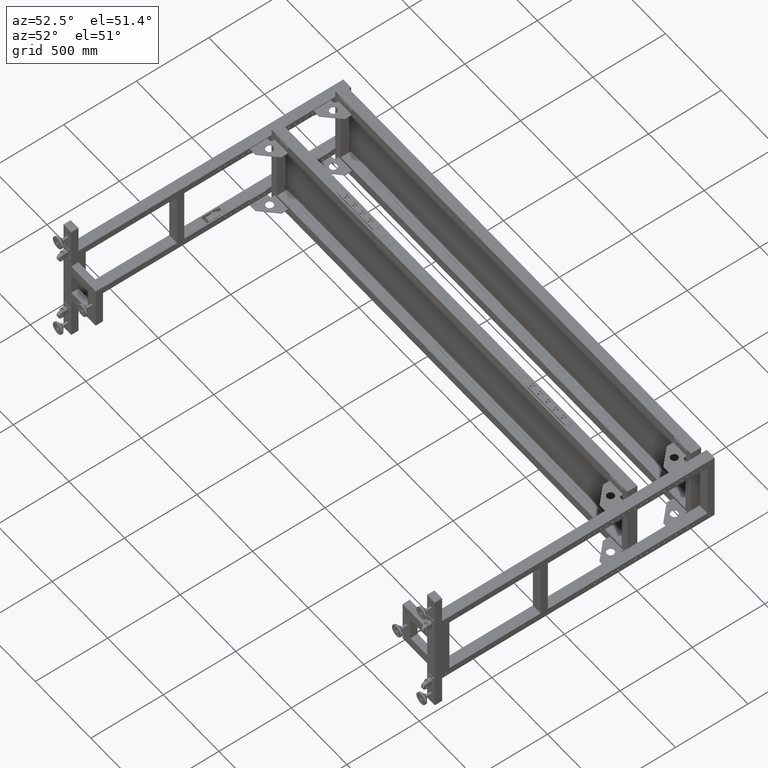
[diagram: clean part render]
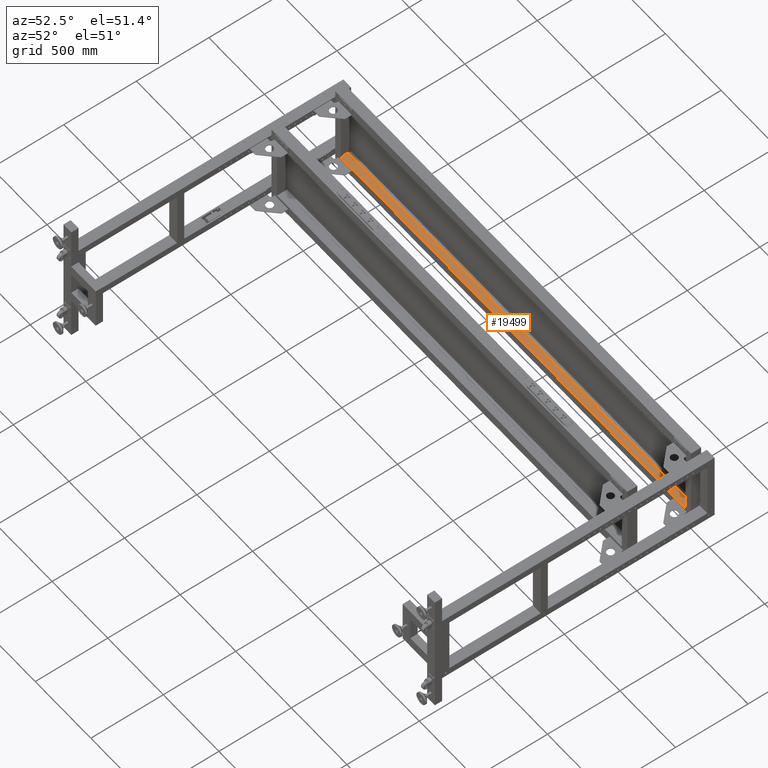
[diagram: same view with one face highlighted and labeled with its STEP entity id]
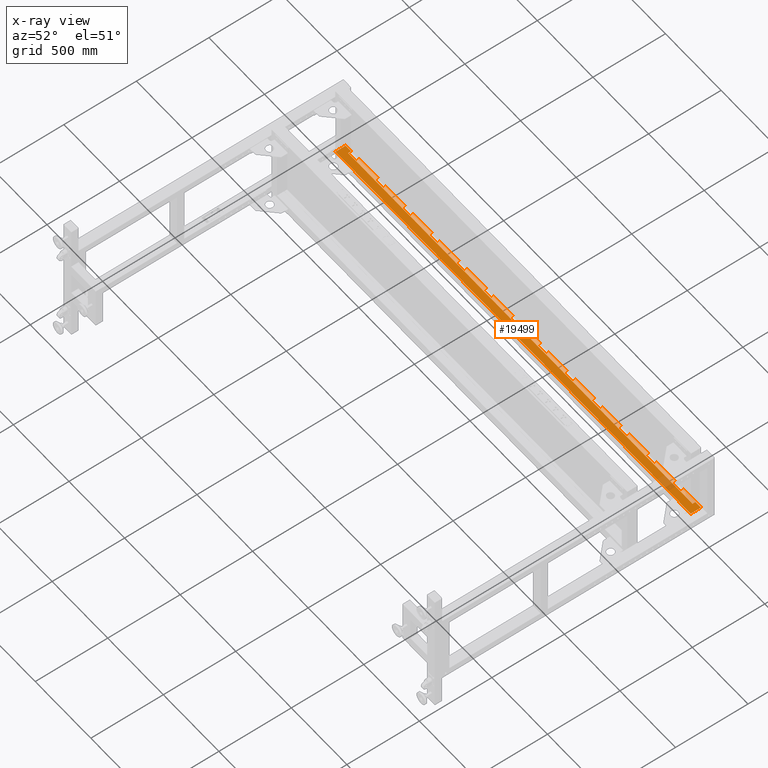
[diagram: x-ray of the same camera — body ghosted, the highlighted face saturated]
A machine part, auxiliary view. The second image highlights one B-rep face of the part: STEP entity #19499.
The next image is the same camera in x-ray: the body ghosted, the highlighted face saturated — about 3% of this face is hidden behind the body in this view.
In plain terms, the highlighted planar face has unit normal (-0, 0, -1).
Its self-contained STEP definition (entity closure, byte-faithful):
#1417 = CARTESIAN_POINT ( 'NONE',  ( 1929.827512562814263, 996.9410804020149044, -229.9999999999988631 ) ) ;
#3870 = EDGE_CURVE ( 'NONE', #6183, #57507, #53532, .T. ) ;
#6183 = VERTEX_POINT ( 'NONE', #56671 ) ;
#6392 = ORIENTED_EDGE ( 'NONE', *, *, #75261, .T. ) ;
#8231 = FACE_OUTER_BOUND ( 'NONE', #72104, .T. ) ;
#9487 = EDGE_LOOP ( 'NONE', ( #17562, #39138, #43353, #6392 ) ) ;
#9618 = LINE ( 'NONE', #77213, #46469 ) ;
#10977 = VERTEX_POINT ( 'NONE', #1417 ) ;
#11415 = CARTESIAN_POINT ( 'NONE',  ( -1266.172487437185964, 996.9410804020137675, -229.9999999999988631 ) ) ;
#12102 = VERTEX_POINT ( 'NONE', #25275 ) ;
#13937 = EDGE_CURVE ( 'NONE', #10977, #64290, #72212, .T. ) ;
#15611 = LINE ( 'NONE', #28062, #16224 ) ;
#16224 = VECTOR ( 'NONE', #77159, 1000.000000000000000 ) ;
#16496 = VERTEX_POINT ( 'NONE', #30847 ) ;
#17080 = DIRECTION ( 'NONE',  ( -1.000000000000000000, -4.543257172554223644E-16, 0.000000000000000000 ) ) ;
#17189 = VECTOR ( 'NONE', #72204, 1000.000000000000000 ) ;
#17562 = ORIENTED_EDGE ( 'NONE', *, *, #26560, .T. ) ;
#18334 = CARTESIAN_POINT ( 'NONE',  ( -1266.172487437185964, 926.9410804020137675, -229.9999999999991473 ) ) ;
#18443 = CARTESIAN_POINT ( 'NONE',  ( 1929.827512562814263, 926.9410804020147907, -229.9999999999991473 ) ) ;
#18803 = VECTOR ( 'NONE', #67548, 1000.000000000000000 ) ;
#19499 = ADVANCED_FACE ( 'NONE', ( #8231, #75440 ), #20323, .F. ) ;
#20323 = PLANE ( 'NONE',  #55794 ) ;
#21086 = VECTOR ( 'NONE', #59281, 1000.000000000000000 ) ;
#21793 = EDGE_CURVE ( 'NONE', #57507, #64290, #72681, .T. ) ;
#22079 = DIRECTION ( 'NONE',  ( 1.000000000000000000, 4.311960709090649200E-16, -9.253252722517677530E-32 ) ) ;
#22956 = DIRECTION ( 'NONE',  ( -1.000000000000000000, -4.543257172554223644E-16, 0.000000000000000000 ) ) ;
#23220 = EDGE_CURVE ( 'NONE', #6183, #10977, #61096, .T. ) ;
#25275 = CARTESIAN_POINT ( 'NONE',  ( 1880.256801884696642, 976.9410804020142223, -229.9999999999988631 ) ) ;
#26560 = EDGE_CURVE ( 'NONE', #73780, #12102, #48012, .T. ) ;
#27316 = ORIENTED_EDGE ( 'NONE', *, *, #13937, .T. ) ;
#28062 = CARTESIAN_POINT ( 'NONE',  ( -1216.601776759067889, 995.4410804020130854, -229.9999999999988347 ) ) ;
#29120 = CARTESIAN_POINT ( 'NONE',  ( 1880.256801884696642, 995.4410804020142223, -229.9999999999988347 ) ) ;
#30847 = CARTESIAN_POINT ( 'NONE',  ( -1216.601776759067889, 995.4310804020111618, -229.9999999999988916 ) ) ;
#31505 = CARTESIAN_POINT ( 'NONE',  ( -1266.172487437185964, 926.9410804020137675, -229.9999999999991473 ) ) ;
#32684 = VERTEX_POINT ( 'NONE', #49742 ) ;
#35662 = DIRECTION ( 'NONE',  ( 0.000000000000000000, 1.000000000000000000, 3.603491776919587486E-15 ) ) ;
#39138 = ORIENTED_EDGE ( 'NONE', *, *, #55166, .F. ) ;
#43353 = ORIENTED_EDGE ( 'NONE', *, *, #58609, .F. ) ;
#45226 = DIRECTION ( 'NONE',  ( -1.637158986173007899E-30, 3.603491776919587486E-15, -1.000000000000000000 ) ) ;
#46469 = VECTOR ( 'NONE', #22079, 1000.000000000000000 ) ;
#47486 = CARTESIAN_POINT ( 'NONE',  ( 1929.827512562814263, 926.9410804020147907, -229.9999999999991473 ) ) ;
#48012 = LINE ( 'NONE', #29120, #21086 ) ;
#49742 = CARTESIAN_POINT ( 'NONE',  ( -1216.601776759067889, 976.9410804020130854, -229.9999999999988631 ) ) ;
#51280 = CARTESIAN_POINT ( 'NONE',  ( 1929.827512562814263, 926.9410804020147907, -229.9999999999991473 ) ) ;
#53532 = LINE ( 'NONE', #47486, #74855 ) ;
#54089 = CARTESIAN_POINT ( 'NONE',  ( 1929.827512562814263, 996.9410804020149044, -229.9999999999988631 ) ) ;
#54631 = VECTOR ( 'NONE', #35662, 1000.000000000000000 ) ;
#55093 = ORIENTED_EDGE ( 'NONE', *, *, #23220, .T. ) ;
#55166 = EDGE_CURVE ( 'NONE', #32684, #12102, #70618, .T. ) ;
#55794 = AXIS2_PLACEMENT_3D ( 'NONE', #51280, #45226, #69790 ) ;
#56671 = CARTESIAN_POINT ( 'NONE',  ( 1929.827512562814263, 926.9410804020147907, -229.9999999999991473 ) ) ;
#57507 = VERTEX_POINT ( 'NONE', #31505 ) ;
#58609 = EDGE_CURVE ( 'NONE', #16496, #32684, #15611, .T. ) ;
#59281 = DIRECTION ( 'NONE',  ( 4.543257172554223644E-16, -1.000000000000000000, -4.000602769257180823E-15 ) ) ;
#59394 = ORIENTED_EDGE ( 'NONE', *, *, #21793, .F. ) ;
#60063 = CARTESIAN_POINT ( 'NONE',  ( 1880.256801884696642, 995.4310804020143451, -229.9999999999988631 ) ) ;
#61096 = LINE ( 'NONE', #18443, #18803 ) ;
#64290 = VERTEX_POINT ( 'NONE', #11415 ) ;
#65768 = CARTESIAN_POINT ( 'NONE',  ( 681.8275125628146043, 976.9410804020136538, -229.9999999999988631 ) ) ;
#67548 = DIRECTION ( 'NONE',  ( -4.543257172554223644E-16, 1.000000000000000000, 3.603491776919587486E-15 ) ) ;
#69650 = ORIENTED_EDGE ( 'NONE', *, *, #3870, .F. ) ;
#69790 = DIRECTION ( 'NONE',  ( -4.543257172554223644E-16, 1.000000000000000000, 3.603491776919587486E-15 ) ) ;
#70618 = LINE ( 'NONE', #65768, #17189 ) ;
#70816 = VECTOR ( 'NONE', #17080, 1000.000000000000000 ) ;
#72104 = EDGE_LOOP ( 'NONE', ( #27316, #59394, #69650, #55093 ) ) ;
#72204 = DIRECTION ( 'NONE',  ( 1.000000000000000000, 4.543257172554223644E-16, 0.000000000000000000 ) ) ;
#72212 = LINE ( 'NONE', #54089, #70816 ) ;
#72681 = LINE ( 'NONE', #18334, #54631 ) ;
#73780 = VERTEX_POINT ( 'NONE', #60063 ) ;
#74855 = VECTOR ( 'NONE', #22956, 1000.000000000000000 ) ;
#75261 = EDGE_CURVE ( 'NONE', #16496, #73780, #9618, .T. ) ;
#75440 = FACE_BOUND ( 'NONE', #9487, .T. ) ;
#77159 = DIRECTION ( 'NONE',  ( 0.000000000000000000, -1.000000000000000000, -4.000602769257180823E-15 ) ) ;
#77213 = CARTESIAN_POINT ( 'NONE',  ( 1881.827512562814263, 995.4310804020143451, -229.9999999999988347 ) ) ;